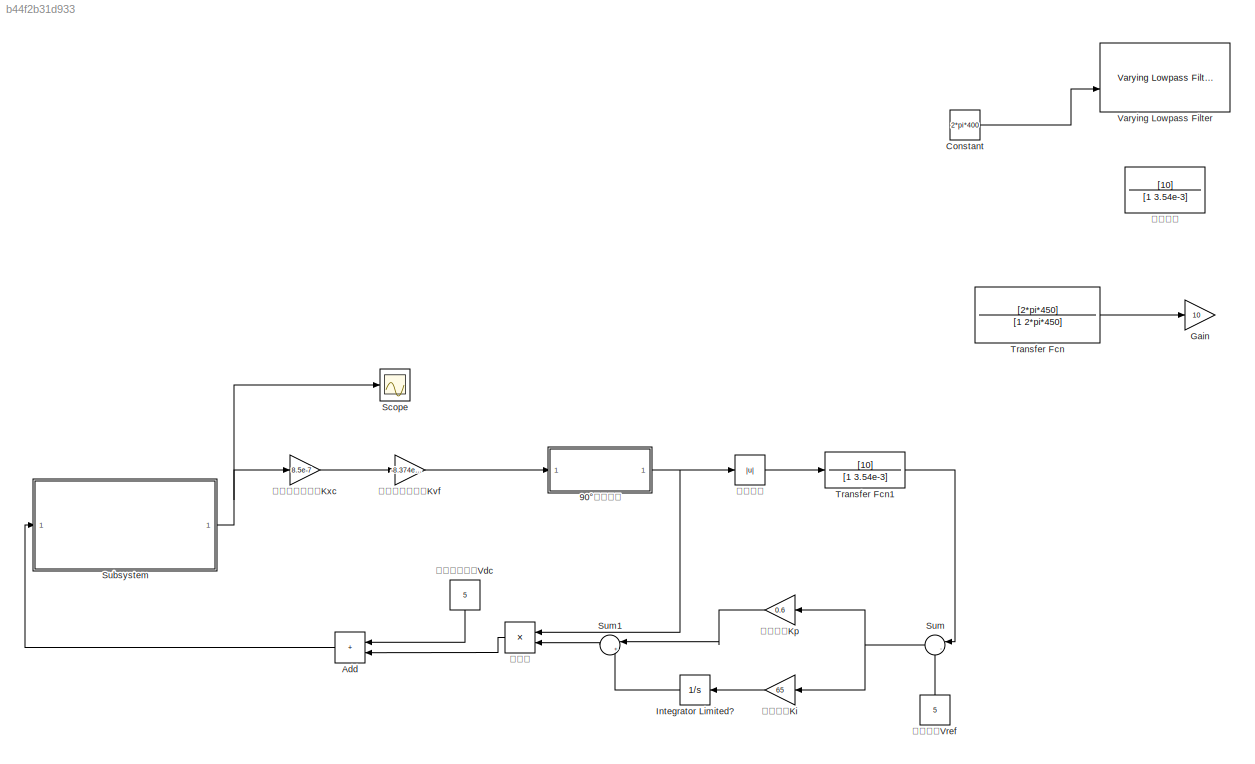
MODEL slx_b44f2b31d933
KIND model
CONFIG AbsTol = auto
CONFIG EnableMultiTasking = off
CONFIG FixedStep = 1e-5
CONFIG MaxStep = 1e-5
CONFIG MinStep = auto
CONFIG RelTol = 1e-3
CONFIG SampleTimeConstraint = Unconstrained
CONFIG SolverName = VariableStepAuto
CONFIG StartTime = 0.0
CONFIG StopTime = 3
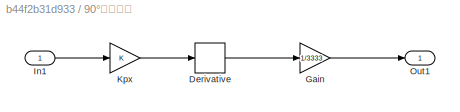
BLOCK [SubSystem] 90°移相模块
BLOCK [Derivative] 90°移相模块/Derivative
BLOCK [Gain] 90°移相模块/Gain
  Commented = through
  Gain = 1/3333
BLOCK [Inport] 90°移相模块/In1
BLOCK [Gain] 90°移相模块/Kpx
BLOCK [Outport] 90°移相模块/Out1
BLOCK [Sum] Add
  IconShape = rectangular
  NameLocation = top
BLOCK [Constant] Constant
  Commented = on
  Value = 2*pi*400
BLOCK [Gain] Gain
  Commented = on
  Gain = 10
BLOCK [Integrator] Integrator Limited?
  LimitOutput = on
  LowerSaturationLimit = 0
  UpperSaturationLimit = 3
BLOCK [Scope] Scope
  Floating = off
  NumInputPorts = 1
  ScopeSpecificationString = Simulink.scopes.TimeScopeBlockCfg('CurrentConfiguration', extmgr.ConfigurationSet(extmgr.Configuration('Core','General UI',true),extmgr.Configuration('Core','Source UI',true),extmgr.Configuration('Sources','WiredSimulink',true),extmgr.Configuration('Visuals','Time Domain',true,'SerializedDisplays',{struct('MinYLimReal','-0.0000000000025','MaxYLimReal','0.0000000000055','YLabelReal','','MinYLimMag'...<+1469ch>
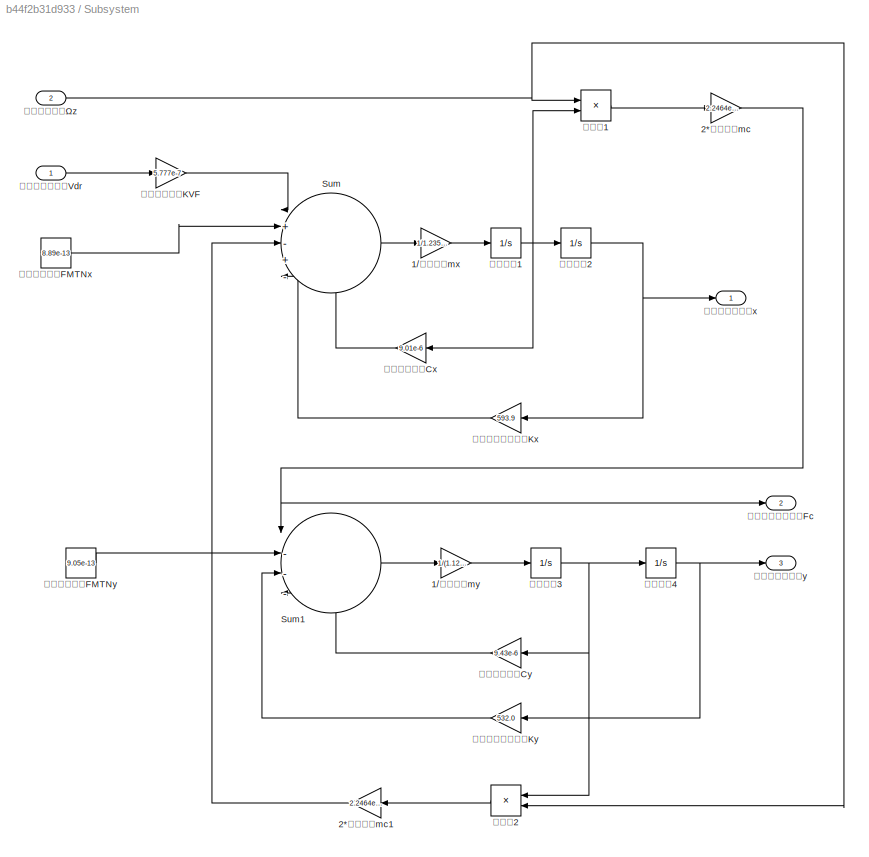
BLOCK [SubSystem] Subsystem
BLOCK [Gain] Subsystem/1//检测质量my
  Gain = 1/(1.1232e-6)
BLOCK [Gain] Subsystem/1//驱动质量mx
  Gain = 1/1.2355e-6
BLOCK [Gain] Subsystem/2*敏感质量mc
  Gain = 2.2464e-6
BLOCK [Gain] Subsystem/2*敏感质量mc1
  Gain = 2.2464e-6
  NameLocation = top
BLOCK [Sum] Subsystem/Sum
  Inputs = |+-+--
BLOCK [Sum] Subsystem/Sum1
  Inputs = |----
BLOCK [Product] Subsystem/乘法器1
BLOCK [Product] Subsystem/乘法器2
  NameLocation = top
BLOCK [Constant] Subsystem/机械热噪声：FMTNx
  Value = 8.89e-13
BLOCK [Constant] Subsystem/机械热噪声：FMTNy
  Value = 9.05e-13
BLOCK [Gain] Subsystem/检测弹性刚度系数Ky
  Gain = 532.0
  NameLocation = top
BLOCK [Gain] Subsystem/检测阻尼系数Cy
  Gain = 9.43e-6
  NameLocation = top
BLOCK [Integrator] Subsystem/积分环节1
BLOCK [Integrator] Subsystem/积分环节2
BLOCK [Integrator] Subsystem/积分环节3
BLOCK [Integrator] Subsystem/积分环节4
BLOCK [Inport] Subsystem/输入：角速度Ωz
  Port = 2
BLOCK [Inport] Subsystem/输入：驱动电压Vdr
BLOCK [Outport] Subsystem/输出：哥氏力观测Fc
  Port = 2
BLOCK [Outport] Subsystem/输出：检测位移y
  Port = 3
BLOCK [Outport] Subsystem/输出：驱动位移x
BLOCK [Gain] Subsystem/驱动力矩器：KVF
  Gain = 5.777e-7
BLOCK [Gain] Subsystem/驱动弹性刚度系数Kx
  Gain = 593.9
  NameLocation = top
BLOCK [Gain] Subsystem/驱动阻尼系数Cx
  Gain = 9.01e-6
  NameLocation = top
BLOCK [Sum] Sum
  Inputs = |-+
  NameLocation = top
BLOCK [Sum] Sum1
  Inputs = |++
  NameLocation = top
BLOCK [TransferFcn] Transfer Fcn
  Commented = on
  Denominator = [1 2*pi*450]
  Numerator = [2*pi*450]
BLOCK [TransferFcn] Transfer Fcn1
  Denominator = [1 3.54e-3]
  Numerator = [10]
BLOCK [Reference] Varying Lowpass Filter  REF=cstblocks/Linear Parameter Varying/Varying Lowpass Filter
  Commented = on
  SourceBlock = cstblocks/Linear Parameter Varying/Varying Lowpass Filter
  SourceType = Varying Lowpass Filter
BLOCK [Gain] 位移电容转换：Kxc
  Gain = 8.5e-7
BLOCK [TransferFcn] 低通滤波
  Commented = through
  Denominator = [1 3.54e-3]
  Numerator = [10]
BLOCK [Abs] 全波整流
  SaturateOnIntegerOverflow = off
BLOCK [Gain] 比例系数Kp
  Gain = 0.6
  NameLocation = top
BLOCK [Constant] 电压基准Vref
  NameLocation = right
  Value = 5
BLOCK [Gain] 电容电压转换：Kvf
  Gain = -8.374e11
BLOCK [Constant] 直流驱动电压Vdc
  NameLocation = right
  Value = 5
BLOCK [Gain] 积分系数Ki
  Gain = 65
  NameLocation = top
BLOCK [Product] 调制器
LINE 90°移相模块/Derivative:1 -> 90°移相模块/Gain:1
LINE 90°移相模块/Gain:1 -> 90°移相模块/Out1:1
LINE 90°移相模块/In1:1 -> 90°移相模块/Kpx:1
LINE 90°移相模块/Kpx:1 -> 90°移相模块/Derivative:1
NET 90°移相模块:1 -> 全波整流:1, 调制器:1
LINE Add:1 -> Subsystem:1
LINE Constant:1 -> Varying Lowpass Filter:2
LINE Integrator Limited?:1 -> Sum1:2
LINE Subsystem/1//检测质量my:1 -> Subsystem/积分环节3:1
LINE Subsystem/1//驱动质量mx:1 -> Subsystem/积分环节1:1
LINE Subsystem/2*敏感质量mc1:1 -> Subsystem/Sum:3
NET Subsystem/2*敏感质量mc:1 -> Subsystem/Sum1:1, Subsystem/输出：哥氏力观测Fc:1
LINE Subsystem/Sum1:1 -> Subsystem/1//检测质量my:1
LINE Subsystem/Sum:1 -> Subsystem/1//驱动质量mx:1
LINE Subsystem/乘法器1:1 -> Subsystem/2*敏感质量mc:1
LINE Subsystem/乘法器2:1 -> Subsystem/2*敏感质量mc1:1
LINE Subsystem/机械热噪声：FMTNx:1 -> Subsystem/Sum:2
LINE Subsystem/机械热噪声：FMTNy:1 -> Subsystem/Sum1:2
LINE Subsystem/检测弹性刚度系数Ky:1 -> Subsystem/Sum1:3
LINE Subsystem/检测阻尼系数Cy:1 -> Subsystem/Sum1:4
NET Subsystem/积分环节1:1 -> Subsystem/乘法器1:2, Subsystem/积分环节2:1, Subsystem/驱动阻尼系数Cx:1
NET Subsystem/积分环节2:1 -> Subsystem/输出：驱动位移x:1, Subsystem/驱动弹性刚度系数Kx:1
NET Subsystem/积分环节3:1 -> Subsystem/乘法器2:1, Subsystem/检测阻尼系数Cy:1, Subsystem/积分环节4:1
NET Subsystem/积分环节4:1 -> Subsystem/检测弹性刚度系数Ky:1, Subsystem/输出：检测位移y:1
NET Subsystem/输入：角速度Ωz:1 -> Subsystem/乘法器1:1, Subsystem/乘法器2:2
LINE Subsystem/输入：驱动电压Vdr:1 -> Subsystem/驱动力矩器：KVF:1
LINE Subsystem/驱动力矩器：KVF:1 -> Subsystem/Sum:1
LINE Subsystem/驱动弹性刚度系数Kx:1 -> Subsystem/Sum:4
LINE Subsystem/驱动阻尼系数Cx:1 -> Subsystem/Sum:5
NET Subsystem:1 -> Scope:1, 位移电容转换：Kxc:1
LINE Sum1:1 -> 调制器:2
NET Sum:1 -> 比例系数Kp:1, 积分系数Ki:1
LINE Transfer Fcn1:1 -> Sum:1
LINE Transfer Fcn:1 -> Gain:1
LINE 位移电容转换：Kxc:1 -> 电容电压转换：Kvf:1
LINE 全波整流:1 -> Transfer Fcn1:1
LINE 比例系数Kp:1 -> Sum1:1
LINE 电压基准Vref:1 -> Sum:2
LINE 电容电压转换：Kvf:1 -> 90°移相模块:1
LINE 直流驱动电压Vdc:1 -> Add:1
LINE 积分系数Ki:1 -> Integrator Limited?:1
LINE 调制器:1 -> Add:2
note: NET lines group one-source signal fan-out (src -> all destinations, sorted); 1:1 wires keep LINE
